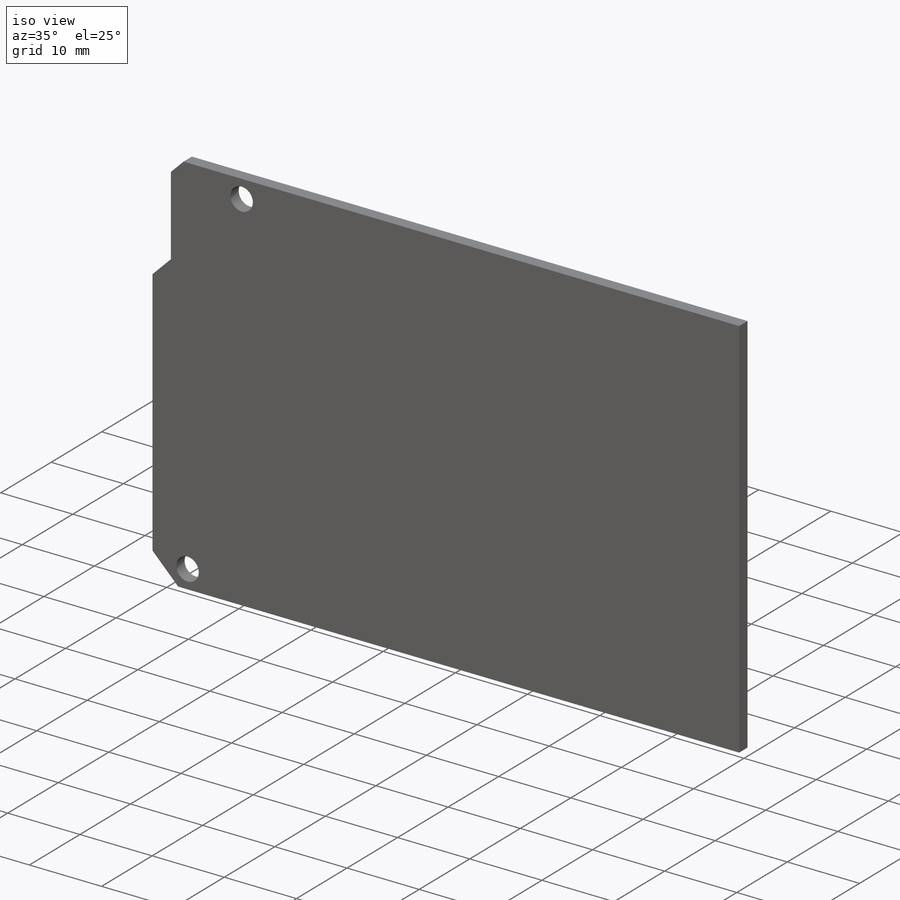
[diagram: iso view]
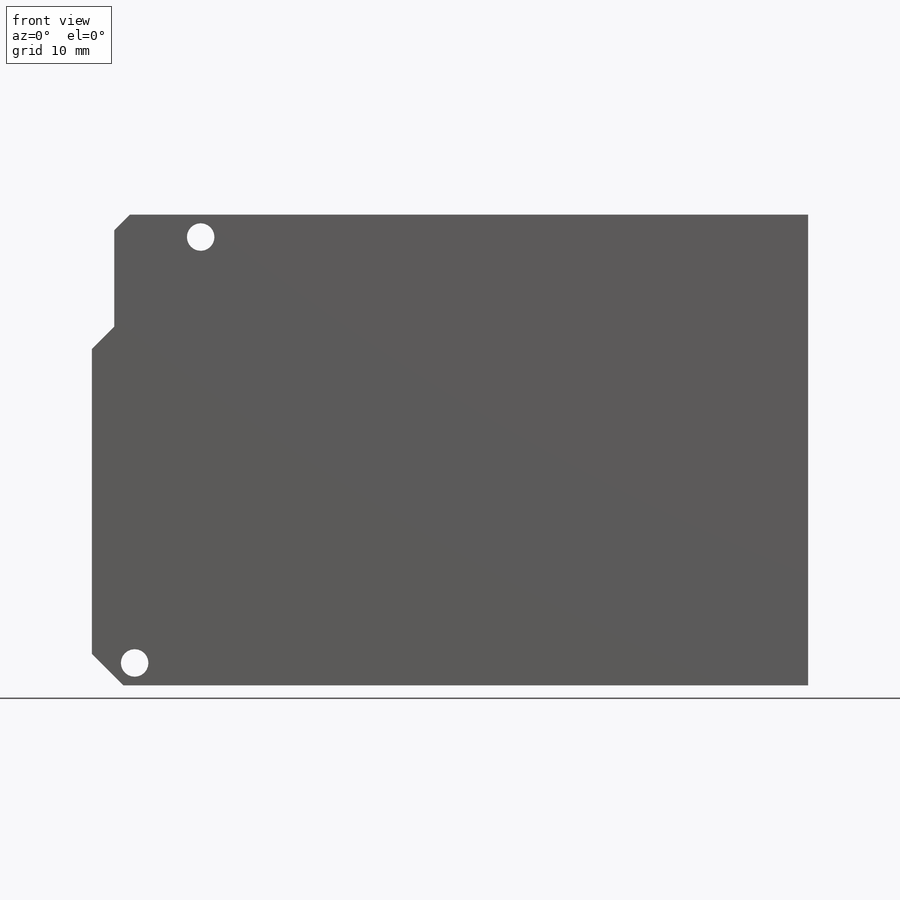
[diagram: front view]
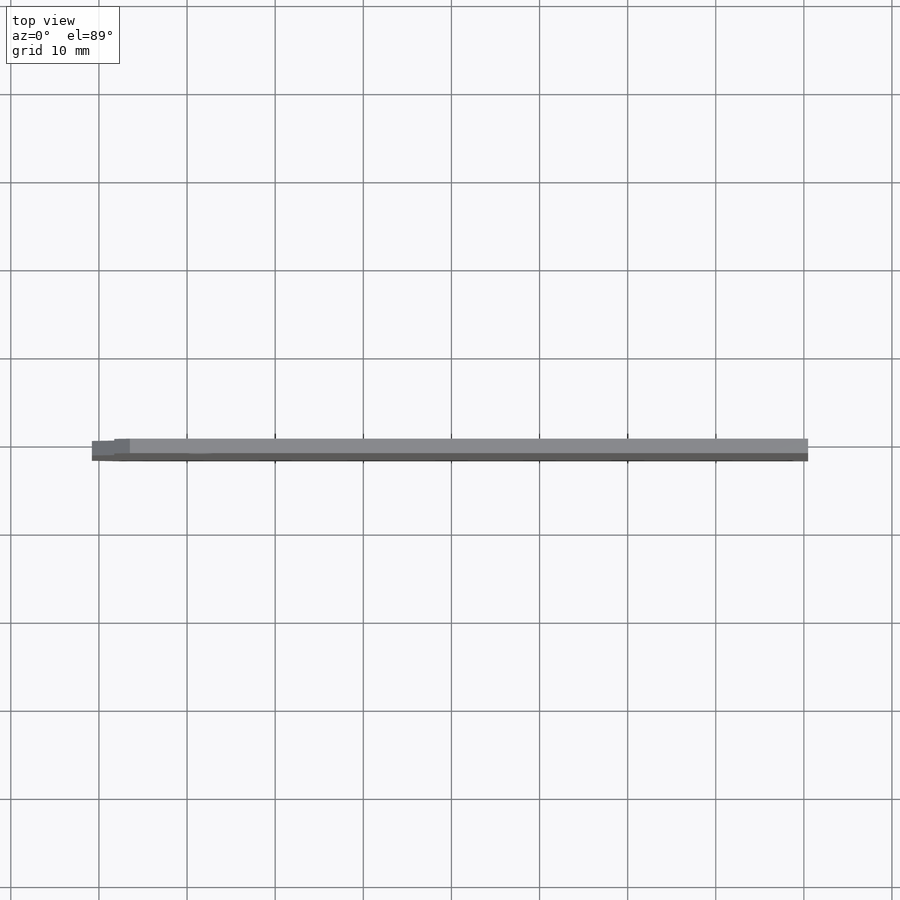
[diagram: top view]
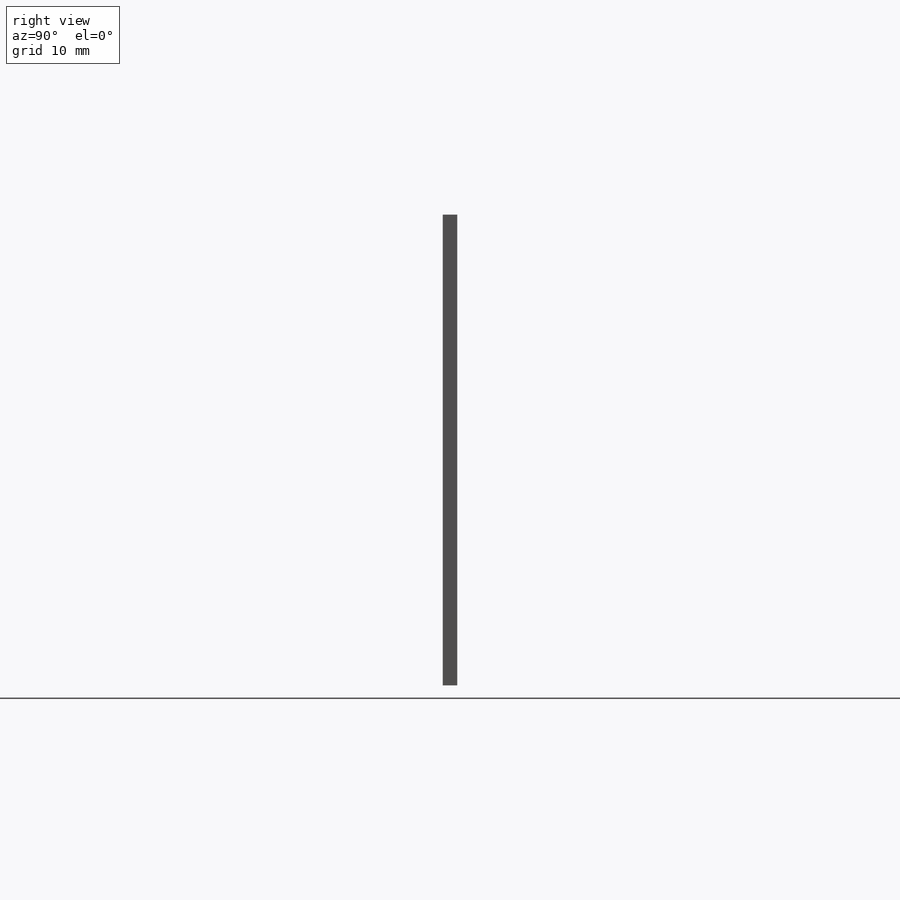
[diagram: right view]
SOLIDWORKS PART (.sldprt)
format: sldprt  version: not decoded by parser v0  size: 275,456 bytes
history: native  units: mm
features: sketch x4, cut_extrude x3, material x1, extrude x1, chamfer x1 (+13 scaffold rows collapsed)
feature tree (23):
  scaffold x13  (default folders/planes/origin — collapsed)
  material  "Matériau <non spécifié>"
  sketch  "Sketch1"  dims[D1=101.6mm D2=53.4162mm]
  extrude  "Boss-Extrude1"  Depth=1.651mm
  chamfer  "Chamfer3"  Distance=3.556mm Angle=45deg
  sketch  "Sketch13"  dims[c1.D1=15.24mm c1.D2=2.54mm c1.D3=~3.755687mm c2.D3=45.0deg]
  cut_extrude  "Cut-Extrude4"  [1 undecoded]
  sketch  "Sketch22"  dims[c1.D1=3.1242mm c1.D2=3.1242mm c1.D3=3.1242mm c1.D4=3.1242mm c1.D5=3.1242mm c1.D6=3.1242mm c1.D7=3.1242mm c1.D8=3.1242mm c1.D9=~2.630513mm c2.D2=14.1224mm c2.D3=2.54mm c2.D4=2.54mm c2.D5=82.6262mm c2.D6=2.54mm c2.D7=2.54mm c2.D8=75.1332mm c2.D9=28.0162mm c2.D10=0.0mm c2.D11=0.0mm c2.D12=0.0mm c2.D13=35.8521mm]
  cut_extrude  "Cut-Extrude5"  [1 undecoded]
  sketch  "Esquisse1"
  cut_extrude  "Enlèv. mat.-Extru.1"  Depth=20.32mm
decode coverage: 6 of 9 modeling features carry decoded parameters
note: ~ marks probable driven/reference dimensions
note: 2 parameter values undecoded
note: suppression state not decoded; provenance and decode notes live in map.json
